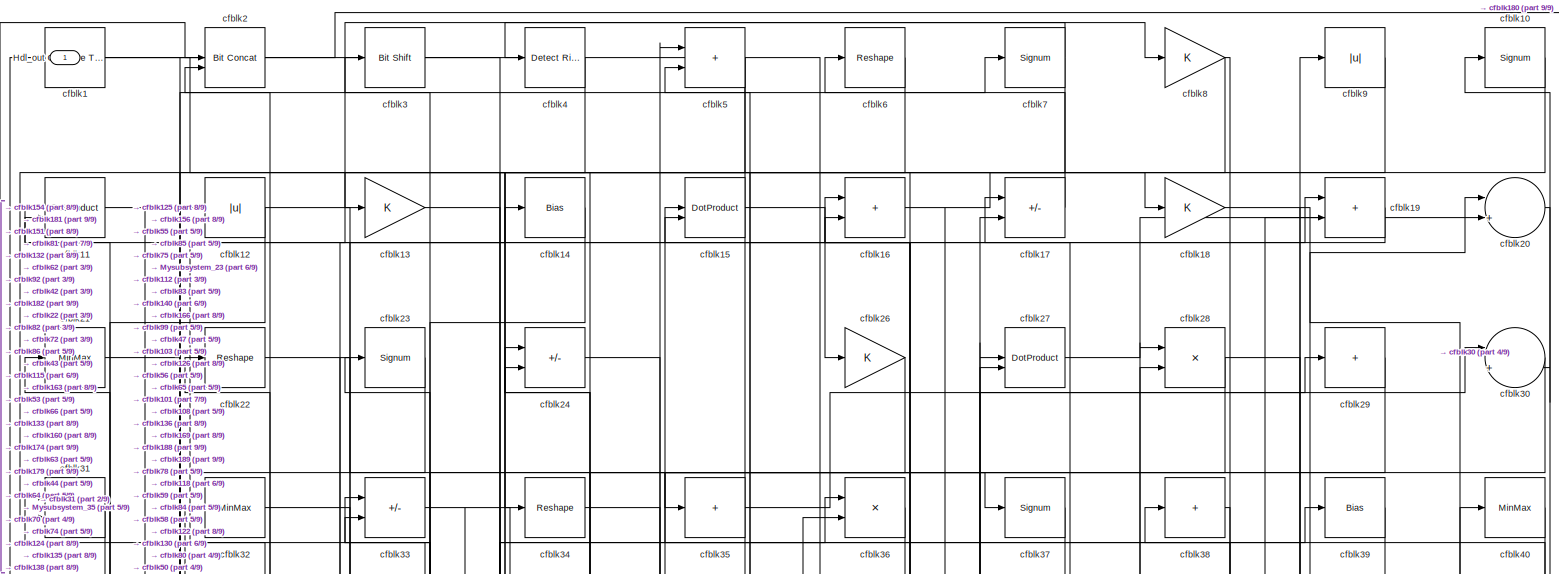
[diagram: root canvas - part 1/9, full width, top band]
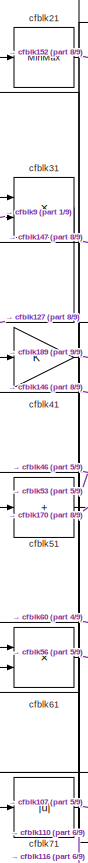
[diagram: root canvas - part 2/9, top left region]
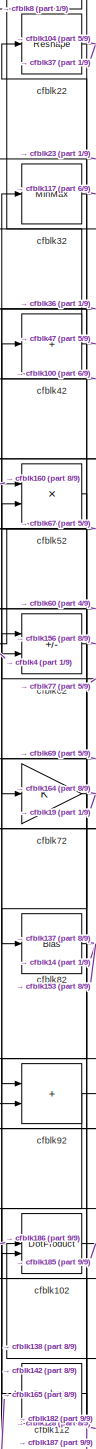
[diagram: root canvas - part 3/9, middle left region]
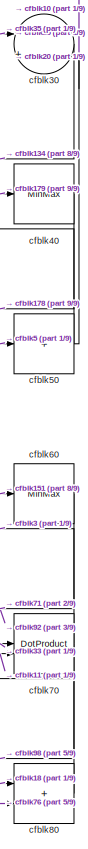
[diagram: root canvas - part 4/9, top right region]
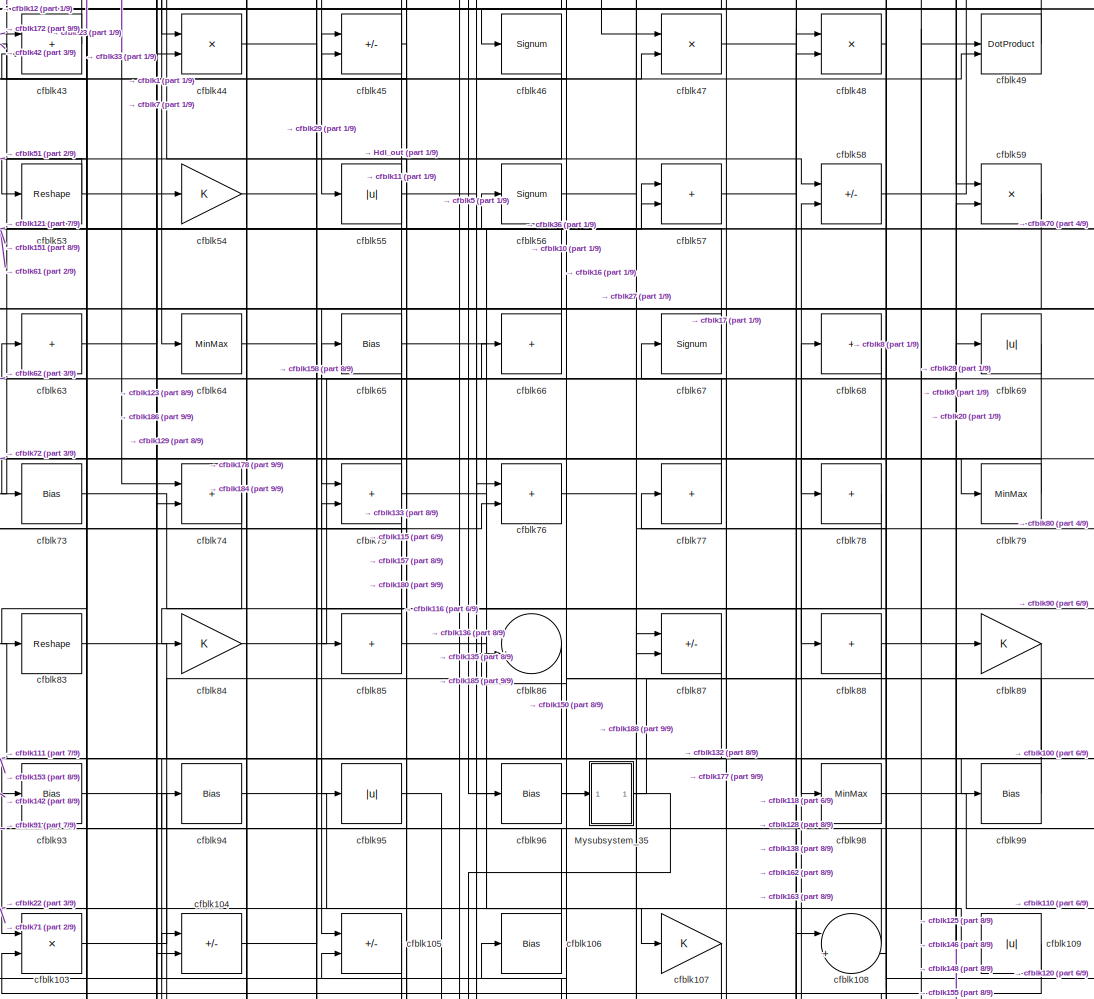
[diagram: root canvas - part 5/9, central region]
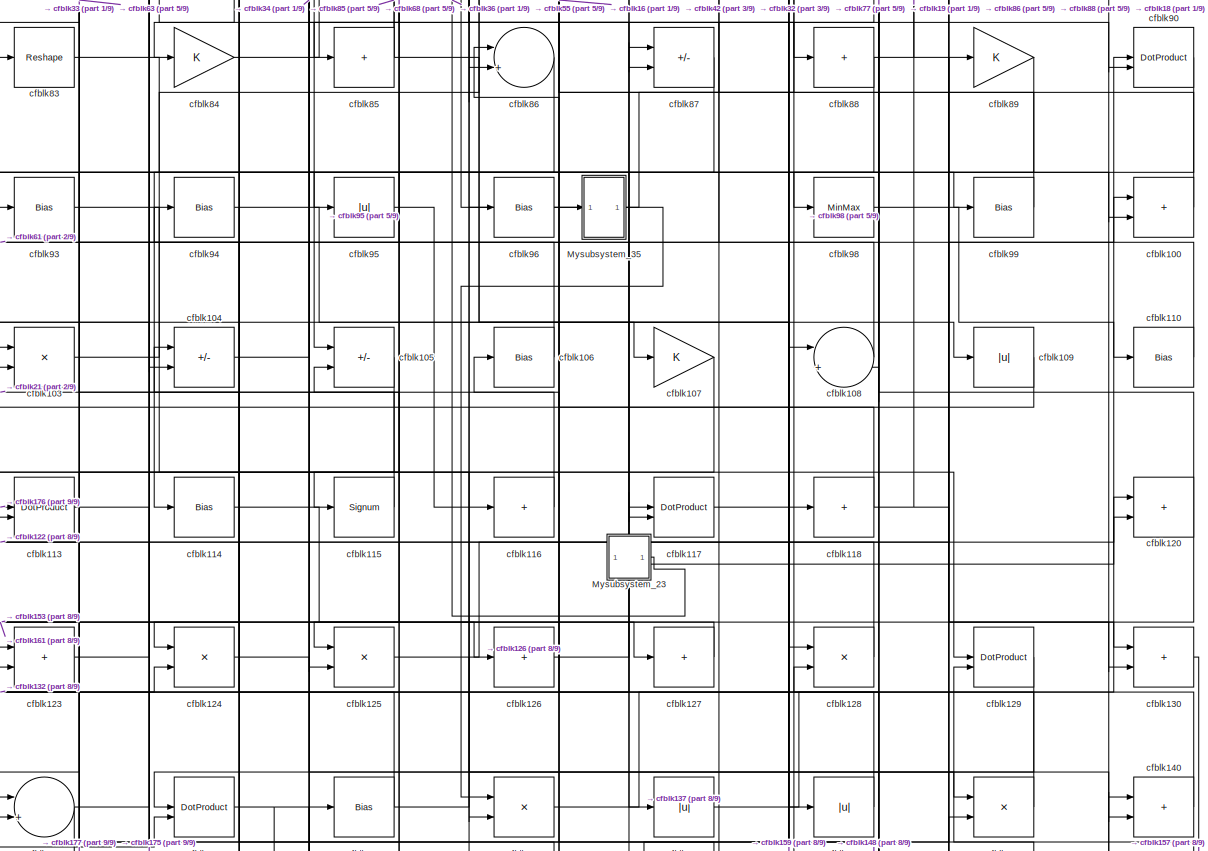
[diagram: root canvas - part 6/9, full width, middle band]
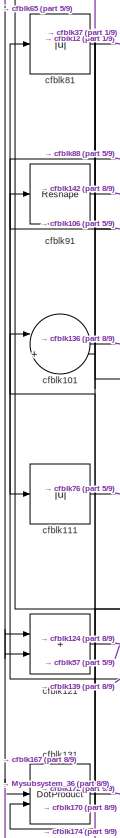
[diagram: root canvas - part 7/9, middle left region]
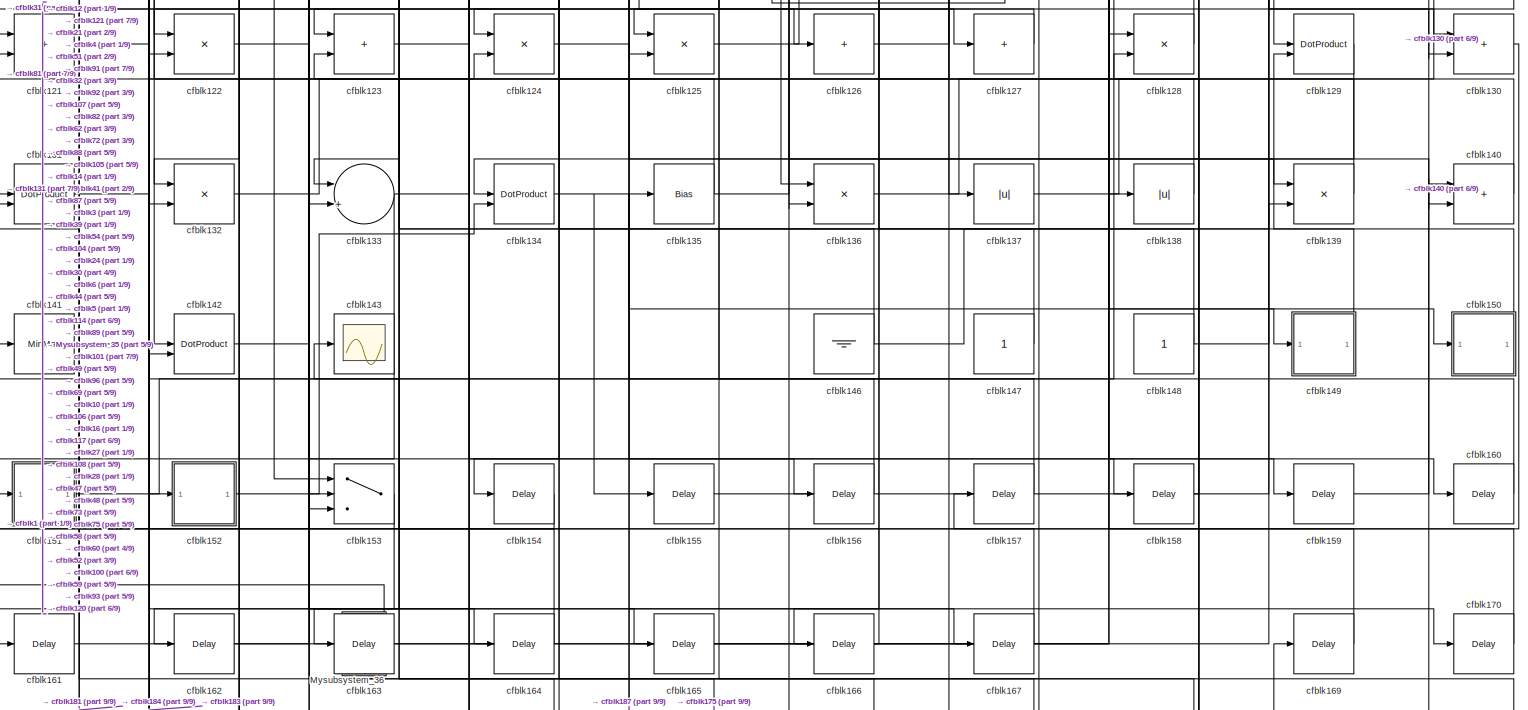
[diagram: root canvas - part 8/9, full width, bottom band]
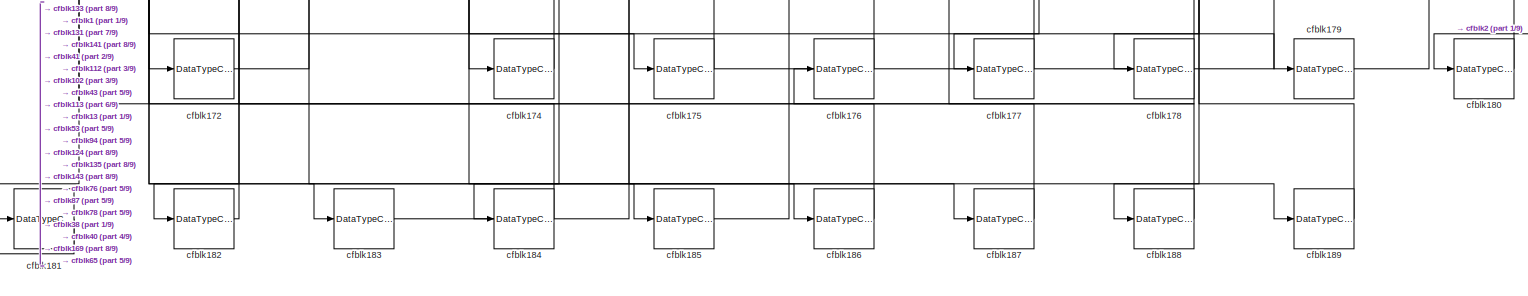
[diagram: root canvas - part 9/9, full width, bottom band]
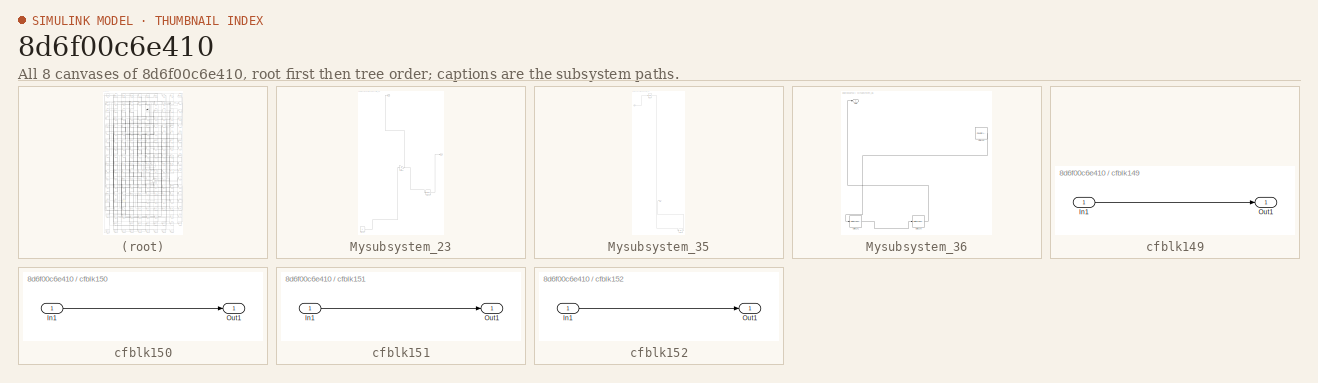
[diagram: thumbnail index - all 8 canvases of the model, root first then tree order]
MODEL slx_8d6f00c6e410
KIND model
CONFIG AbsTol = auto
CONFIG EnableMultiTasking = off
CONFIG FixedStep = auto
CONFIG MaxStep = auto
CONFIG MinStep = auto
CONFIG RelTol = 1e-3
CONFIG SampleTimeConstraint = Unconstrained
CONFIG SolverName = VariableStepAuto
CONFIG StartTime = 0.0
CONFIG StopTime = 10.0
BLOCK [Outport] Hdl_out
  OutDataTypeStr = uint8
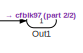
[diagram: Mysubsystem_23 - part 1/2, top center region]
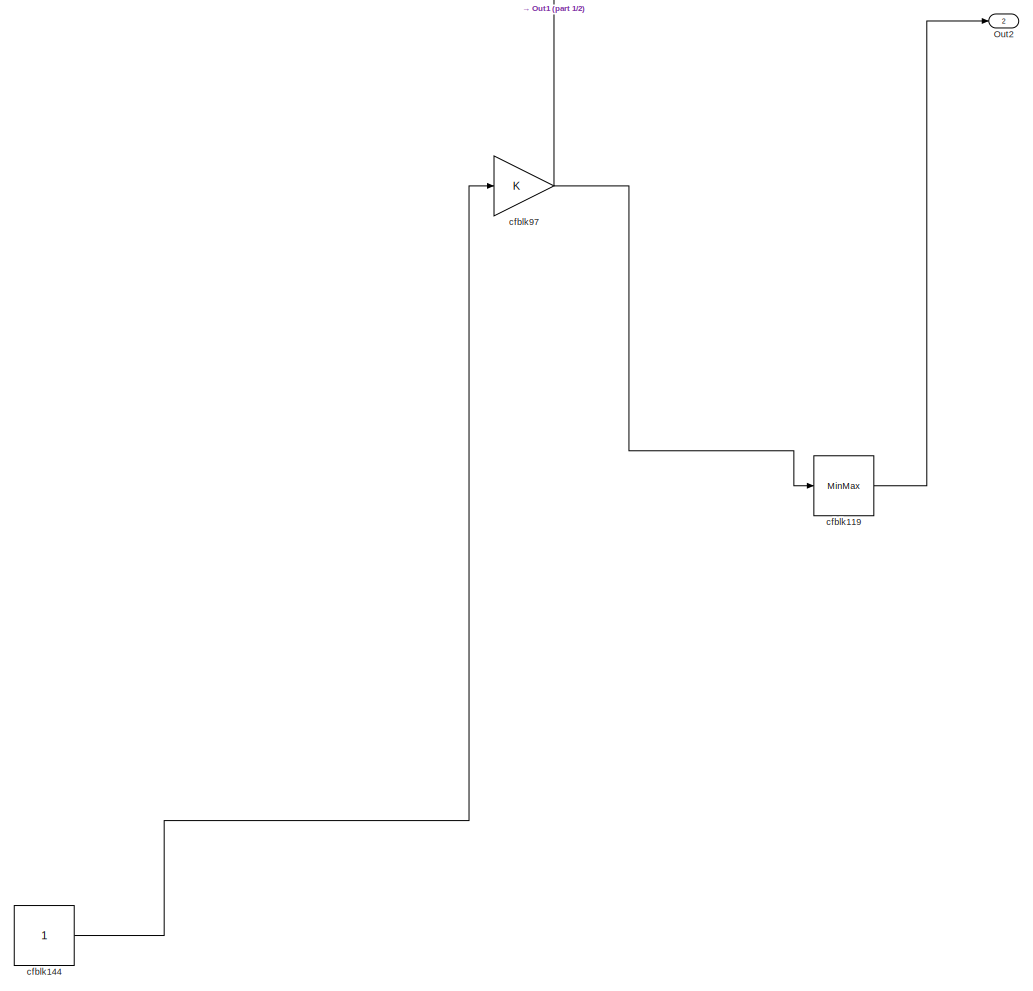
[diagram: Mysubsystem_23 - part 2/2, full width, bottom band]
BLOCK [SubSystem] Mysubsystem_23
  RTWFcnName = Mysubsystem_23
  RTWFcnNameOpts = User specified
  RTWFileNameOpts = Use function name
  RTWSystemCode = Reusable function
  TreatAsAtomicUnit = on
BLOCK [Outport] Mysubsystem_23/Out1
BLOCK [Outport] Mysubsystem_23/Out2
  Port = 2
BLOCK [MinMax] Mysubsystem_23/cfblk119
BLOCK [Constant] Mysubsystem_23/cfblk144
  SampleTime = -1
BLOCK [Gain] Mysubsystem_23/cfblk97
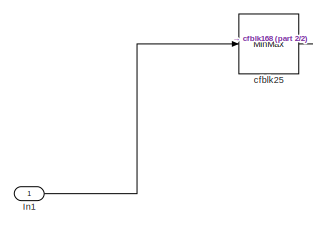
[diagram: Mysubsystem_35 - part 1/2, top left region]
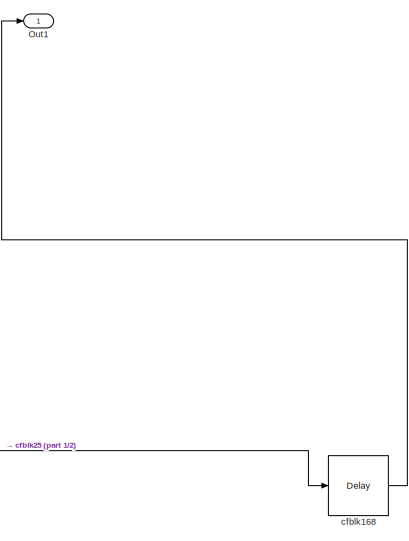
[diagram: Mysubsystem_35 - part 2/2, bottom right region]
BLOCK [SubSystem] Mysubsystem_35
  RTWFcnName = Mysubsystem_35
  RTWFcnNameOpts = User specified
  RTWFileNameOpts = Use function name
  RTWSystemCode = Reusable function
  TreatAsAtomicUnit = on
BLOCK [Inport] Mysubsystem_35/In1
BLOCK [Outport] Mysubsystem_35/Out1
BLOCK [Delay] Mysubsystem_35/cfblk168
  InputPortMap = u0
  SampleTime = 1
BLOCK [MinMax] Mysubsystem_35/cfblk25
BLOCK [SubSystem] Mysubsystem_36
  RTWFcnName = Mysubsystem_36
  RTWFcnNameOpts = User specified
  RTWFileNameOpts = Use function name
  RTWSystemCode = Reusable function
  TreatAsAtomicUnit = on
BLOCK [Outport] Mysubsystem_36/Out1
BLOCK [Reference] Mysubsystem_36/cfblk145  REF=hdlsllib/Sources/Counter
Limited
  SourceBlock = hdlsllib/Sources/Counter\nLimited
  SourceType = Counter Limited
BLOCK [DataTypeConversion] Mysubsystem_36/cfblk171
  OutDataTypeStr = uint8
  RndMeth = Floor
  SaturateOnIntegerOverflow = off
BLOCK [DataTypeConversion] Mysubsystem_36/cfblk173
  OutDataTypeStr = uint8
  RndMeth = Floor
  SaturateOnIntegerOverflow = off
BLOCK [Reference] cfblk1  REF=hdlsllib/Logic and Bit
Operations/Compare
To Zero
  SourceBlock = hdlsllib/Logic and Bit\nOperations/Compare\nTo Zero
  SourceType = Compare To Zero
BLOCK [Signum] cfblk10
BLOCK [Sum] cfblk100
  IconShape = rectangular
  OutDataTypeStr = uint8
BLOCK [Sum] cfblk101
  Inputs = |++
  OutDataTypeStr = uint8
BLOCK [DotProduct] cfblk102
  OutDataTypeStr = uint8
BLOCK [Product] cfblk103
  Inputs = */
  OutDataTypeStr = uint8
  RndMeth = Zero
  SaturateOnIntegerOverflow = on
BLOCK [Sum] cfblk104
  IconShape = rectangular
  Inputs = +-
  OutDataTypeStr = uint8
BLOCK [Sum] cfblk105
  IconShape = rectangular
  Inputs = +-
  OutDataTypeStr = uint8
BLOCK [Bias] cfblk106
  Bias = 0.0
  SaturateOnIntegerOverflow = off
BLOCK [Gain] cfblk107
  OutDataTypeStr = uint8
BLOCK [Sum] cfblk108
  Inputs = |++
  OutDataTypeStr = uint8
BLOCK [Abs] cfblk109
  OutDataTypeStr = uint8
  SaturateOnIntegerOverflow = off
BLOCK [DotProduct] cfblk11
  OutDataTypeStr = uint8
BLOCK [Bias] cfblk110
  Bias = 0.0
  SaturateOnIntegerOverflow = off
BLOCK [Abs] cfblk111
  OutDataTypeStr = uint8
  SaturateOnIntegerOverflow = off
BLOCK [Reshape] cfblk112
BLOCK [DotProduct] cfblk113
  OutDataTypeStr = uint8
BLOCK [Bias] cfblk114
  Bias = 0.0
  SaturateOnIntegerOverflow = off
BLOCK [Signum] cfblk115
BLOCK [Sum] cfblk116
  IconShape = rectangular
  Inputs = +
  OutDataTypeStr = uint8
BLOCK [DotProduct] cfblk117
  OutDataTypeStr = uint8
BLOCK [Sum] cfblk118
  IconShape = rectangular
  Inputs = +
  OutDataTypeStr = uint8
BLOCK [Abs] cfblk12
  OutDataTypeStr = uint8
  SaturateOnIntegerOverflow = off
BLOCK [Sum] cfblk120
  IconShape = rectangular
  OutDataTypeStr = uint8
BLOCK [Sum] cfblk121
  IconShape = rectangular
  OutDataTypeStr = uint8
BLOCK [Product] cfblk122
  Inputs = */
  OutDataTypeStr = uint8
  RndMeth = Zero
  SaturateOnIntegerOverflow = on
BLOCK [Sum] cfblk123
  IconShape = rectangular
  OutDataTypeStr = uint8
BLOCK [Product] cfblk124
  Inputs = */
  OutDataTypeStr = uint8
  RndMeth = Zero
  SaturateOnIntegerOverflow = on
BLOCK [Product] cfblk125
  Inputs = */
  OutDataTypeStr = uint8
  RndMeth = Zero
  SaturateOnIntegerOverflow = on
BLOCK [Sum] cfblk126
  IconShape = rectangular
  Inputs = +
  OutDataTypeStr = uint8
BLOCK [Sum] cfblk127
  IconShape = rectangular
  Inputs = +
  OutDataTypeStr = uint8
BLOCK [Product] cfblk128
  Inputs = */
  OutDataTypeStr = uint8
  RndMeth = Zero
  SaturateOnIntegerOverflow = on
BLOCK [DotProduct] cfblk129
  OutDataTypeStr = uint8
BLOCK [Gain] cfblk13
  OutDataTypeStr = uint8
BLOCK [Sum] cfblk130
  IconShape = rectangular
  OutDataTypeStr = uint8
BLOCK [DotProduct] cfblk131
  OutDataTypeStr = uint8
BLOCK [Product] cfblk132
  Inputs = */
  OutDataTypeStr = uint8
  RndMeth = Zero
  SaturateOnIntegerOverflow = on
BLOCK [Sum] cfblk133
  Inputs = |++
  OutDataTypeStr = uint8
BLOCK [DotProduct] cfblk134
  OutDataTypeStr = uint8
BLOCK [Bias] cfblk135
  Bias = 0.0
  SaturateOnIntegerOverflow = off
BLOCK [Product] cfblk136
  Inputs = */
  OutDataTypeStr = uint8
  RndMeth = Zero
  SaturateOnIntegerOverflow = on
BLOCK [Abs] cfblk137
  OutDataTypeStr = uint8
  SaturateOnIntegerOverflow = off
BLOCK [Abs] cfblk138
  OutDataTypeStr = uint8
  SaturateOnIntegerOverflow = off
BLOCK [Product] cfblk139
  Inputs = */
  OutDataTypeStr = uint8
  RndMeth = Zero
  SaturateOnIntegerOverflow = on
BLOCK [Bias] cfblk14
  Bias = 0.0
  SaturateOnIntegerOverflow = off
BLOCK [Sum] cfblk140
  IconShape = rectangular
  OutDataTypeStr = uint8
BLOCK [MinMax] cfblk141
  OutDataTypeStr = uint8
BLOCK [DotProduct] cfblk142
  OutDataTypeStr = uint8
BLOCK [Scope] cfblk143
  Floating = off
  NumInputPorts = 1
  ScopeSpecificationString = Simulink.scopes.TimeScopeBlockCfg('CurrentConfiguration', extmgr.ConfigurationSet(extmgr.Configuration('Core','General UI',true),extmgr.Configuration('Core','Source UI',true),extmgr.Configuration('Sources','WiredSimulink',true,'DataLoggingVariableName','ScopeData2','DataLoggingSaveFormat','Array','DataLoggingLimitDataPoints',true,'DataLoggingDecimation','1'),extmgr.Configuration('Visuals','Time Do...<+868ch>
BLOCK [Ground] cfblk146
BLOCK [Constant] cfblk147
  OutDataTypeStr = uint8
  SampleTime = -1
BLOCK [Constant] cfblk148
  OutDataTypeStr = uint8
  SampleTime = -1
BLOCK [SubSystem] cfblk149
  LibrarySourceBlock = hdlsllib/Ports &\nSubsystems/Subsystem
BLOCK [Inport] cfblk149/In1
BLOCK [Outport] cfblk149/Out1
BLOCK [DotProduct] cfblk15
  OutDataTypeStr = uint8
BLOCK [SubSystem] cfblk150
  LibrarySourceBlock = hdlsllib/Ports &\nSubsystems/Subsystem
BLOCK [Inport] cfblk150/In1
BLOCK [Outport] cfblk150/Out1
BLOCK [SubSystem] cfblk151
  LibrarySourceBlock = hdlsllib/Ports &\nSubsystems/Subsystem
BLOCK [Inport] cfblk151/In1
BLOCK [Outport] cfblk151/Out1
BLOCK [SubSystem] cfblk152
  LibrarySourceBlock = hdlsllib/Ports &\nSubsystems/Subsystem
BLOCK [Inport] cfblk152/In1
BLOCK [Outport] cfblk152/Out1
BLOCK [Switch] cfblk153
  InputSameDT = off
  OutDataTypeStr = uint8
  SaturateOnIntegerOverflow = off
BLOCK [Delay] cfblk154
  InputPortMap = u0
  SampleTime = 1
BLOCK [Delay] cfblk155
  InputPortMap = u0
  SampleTime = 1
BLOCK [Delay] cfblk156
  InputPortMap = u0
  SampleTime = 1
BLOCK [Delay] cfblk157
  InputPortMap = u0
  SampleTime = 1
BLOCK [Delay] cfblk158
  InputPortMap = u0
  SampleTime = 1
BLOCK [Delay] cfblk159
  InputPortMap = u0
  SampleTime = 1
BLOCK [Sum] cfblk16
  IconShape = rectangular
  OutDataTypeStr = uint8
BLOCK [Delay] cfblk160
  InputPortMap = u0
  SampleTime = 1
BLOCK [Delay] cfblk161
  InputPortMap = u0
  SampleTime = 1
BLOCK [Delay] cfblk162
  InputPortMap = u0
  SampleTime = 1
BLOCK [Delay] cfblk163
  InputPortMap = u0
  SampleTime = 1
BLOCK [Delay] cfblk164
  InputPortMap = u0
  SampleTime = 1
BLOCK [Delay] cfblk165
  InputPortMap = u0
  SampleTime = 1
BLOCK [Delay] cfblk166
  InputPortMap = u0
  SampleTime = 1
BLOCK [Delay] cfblk167
  InputPortMap = u0
  SampleTime = 1
BLOCK [Delay] cfblk169
  InputPortMap = u0
  SampleTime = 1
BLOCK [Sum] cfblk17
  IconShape = rectangular
  Inputs = +-
  OutDataTypeStr = uint8
BLOCK [Delay] cfblk170
  InputPortMap = u0
  SampleTime = 1
BLOCK [DataTypeConversion] cfblk172
  OutDataTypeStr = uint8
  RndMeth = Floor
  SaturateOnIntegerOverflow = off
BLOCK [DataTypeConversion] cfblk174
  OutDataTypeStr = uint8
  RndMeth = Floor
  SaturateOnIntegerOverflow = off
BLOCK [DataTypeConversion] cfblk175
  OutDataTypeStr = uint8
  RndMeth = Floor
  SaturateOnIntegerOverflow = off
BLOCK [DataTypeConversion] cfblk176
  OutDataTypeStr = uint8
  RndMeth = Floor
  SaturateOnIntegerOverflow = off
BLOCK [DataTypeConversion] cfblk177
  OutDataTypeStr = uint8
  RndMeth = Floor
  SaturateOnIntegerOverflow = off
BLOCK [DataTypeConversion] cfblk178
  OutDataTypeStr = uint8
  RndMeth = Floor
  SaturateOnIntegerOverflow = off
BLOCK [DataTypeConversion] cfblk179
  OutDataTypeStr = uint8
  RndMeth = Floor
  SaturateOnIntegerOverflow = off
BLOCK [Gain] cfblk18
  OutDataTypeStr = uint8
BLOCK [DataTypeConversion] cfblk180
  OutDataTypeStr = uint8
  RndMeth = Floor
  SaturateOnIntegerOverflow = off
BLOCK [DataTypeConversion] cfblk181
  OutDataTypeStr = uint8
  RndMeth = Floor
  SaturateOnIntegerOverflow = off
BLOCK [DataTypeConversion] cfblk182
  OutDataTypeStr = uint8
  RndMeth = Floor
  SaturateOnIntegerOverflow = off
BLOCK [DataTypeConversion] cfblk183
  OutDataTypeStr = uint8
  RndMeth = Floor
  SaturateOnIntegerOverflow = off
BLOCK [DataTypeConversion] cfblk184
  OutDataTypeStr = uint8
  RndMeth = Floor
  SaturateOnIntegerOverflow = off
BLOCK [DataTypeConversion] cfblk185
  OutDataTypeStr = uint8
  RndMeth = Floor
  SaturateOnIntegerOverflow = off
BLOCK [DataTypeConversion] cfblk186
  OutDataTypeStr = uint8
  RndMeth = Floor
  SaturateOnIntegerOverflow = off
BLOCK [DataTypeConversion] cfblk187
  OutDataTypeStr = uint8
  RndMeth = Floor
  SaturateOnIntegerOverflow = off
BLOCK [DataTypeConversion] cfblk188
  OutDataTypeStr = uint8
  RndMeth = Floor
  SaturateOnIntegerOverflow = off
BLOCK [DataTypeConversion] cfblk189
  OutDataTypeStr = uint8
  RndMeth = Floor
  SaturateOnIntegerOverflow = off
BLOCK [Sum] cfblk19
  IconShape = rectangular
  OutDataTypeStr = uint8
BLOCK [Reference] cfblk2  REF=hdlsllib/Logic and Bit
Operations/Bit Concat
  SourceBlock = hdlsllib/Logic and Bit\nOperations/Bit Concat
  SourceType = Bit Concat
BLOCK [Sum] cfblk20
  Inputs = |++
  OutDataTypeStr = uint8
BLOCK [MinMax] cfblk21
  OutDataTypeStr = uint8
BLOCK [Reshape] cfblk22
BLOCK [Signum] cfblk23
BLOCK [Sum] cfblk24
  IconShape = rectangular
  Inputs = +-
  OutDataTypeStr = uint8
BLOCK [Gain] cfblk26
  OutDataTypeStr = uint8
BLOCK [DotProduct] cfblk27
  OutDataTypeStr = uint8
BLOCK [Product] cfblk28
  Inputs = */
  OutDataTypeStr = uint8
  RndMeth = Zero
  SaturateOnIntegerOverflow = on
BLOCK [Sum] cfblk29
  IconShape = rectangular
  Inputs = +
  OutDataTypeStr = uint8
BLOCK [Reference] cfblk3  REF=hdlsllib/Logic and Bit
Operations/Bit Shift
  SourceBlock = hdlsllib/Logic and Bit\nOperations/Bit Shift
  SourceType = Bit Shift
BLOCK [Sum] cfblk30
  Inputs = |++
  OutDataTypeStr = uint8
BLOCK [Product] cfblk31
  Inputs = */
  OutDataTypeStr = uint8
  RndMeth = Zero
  SaturateOnIntegerOverflow = on
BLOCK [MinMax] cfblk32
  OutDataTypeStr = uint8
BLOCK [Sum] cfblk33
  IconShape = rectangular
  Inputs = +-
  OutDataTypeStr = uint8
BLOCK [Reshape] cfblk34
BLOCK [Sum] cfblk35
  IconShape = rectangular
  Inputs = +
  OutDataTypeStr = uint8
BLOCK [Product] cfblk36
  Inputs = */
  OutDataTypeStr = uint8
  RndMeth = Zero
  SaturateOnIntegerOverflow = on
BLOCK [Signum] cfblk37
BLOCK [Sum] cfblk38
  IconShape = rectangular
  Inputs = +
  OutDataTypeStr = uint8
BLOCK [Bias] cfblk39
  Bias = 0.0
  SaturateOnIntegerOverflow = off
BLOCK [Reference] cfblk4  REF=hdlsllib/Logic and Bit
Operations/Detect Rise
Nonnegative
  SourceBlock = hdlsllib/Logic and Bit\nOperations/Detect Rise\nNonnegative
  SourceType = Detect Rise Nonnegative
BLOCK [MinMax] cfblk40
  OutDataTypeStr = uint8
BLOCK [Gain] cfblk41
  OutDataTypeStr = uint8
BLOCK [Sum] cfblk42
  IconShape = rectangular
  Inputs = +
  OutDataTypeStr = uint8
BLOCK [Sum] cfblk43
  IconShape = rectangular
  OutDataTypeStr = uint8
BLOCK [Product] cfblk44
  Inputs = */
  OutDataTypeStr = uint8
  RndMeth = Zero
  SaturateOnIntegerOverflow = on
BLOCK [Sum] cfblk45
  IconShape = rectangular
  Inputs = +-
  OutDataTypeStr = uint8
BLOCK [Signum] cfblk46
BLOCK [Product] cfblk47
  Inputs = */
  OutDataTypeStr = uint8
  RndMeth = Zero
  SaturateOnIntegerOverflow = on
BLOCK [Product] cfblk48
  Inputs = */
  OutDataTypeStr = uint8
  RndMeth = Zero
  SaturateOnIntegerOverflow = on
BLOCK [DotProduct] cfblk49
  OutDataTypeStr = uint8
BLOCK [Sum] cfblk5
  IconShape = rectangular
  OutDataTypeStr = uint8
BLOCK [Sum] cfblk50
  IconShape = rectangular
  Inputs = +
  OutDataTypeStr = uint8
BLOCK [Sum] cfblk51
  IconShape = rectangular
  Inputs = +
  OutDataTypeStr = uint8
BLOCK [Product] cfblk52
  Inputs = */
  OutDataTypeStr = uint8
  RndMeth = Zero
  SaturateOnIntegerOverflow = on
BLOCK [Reshape] cfblk53
BLOCK [Gain] cfblk54
  OutDataTypeStr = uint8
BLOCK [Abs] cfblk55
  OutDataTypeStr = uint8
  SaturateOnIntegerOverflow = off
BLOCK [Signum] cfblk56
BLOCK [Sum] cfblk57
  IconShape = rectangular
  OutDataTypeStr = uint8
BLOCK [Sum] cfblk58
  IconShape = rectangular
  Inputs = +-
  OutDataTypeStr = uint8
BLOCK [Product] cfblk59
  Inputs = */
  OutDataTypeStr = uint8
  RndMeth = Zero
  SaturateOnIntegerOverflow = on
BLOCK [Reshape] cfblk6
BLOCK [MinMax] cfblk60
  OutDataTypeStr = uint8
BLOCK [Product] cfblk61
  Inputs = */
  OutDataTypeStr = uint8
  RndMeth = Zero
  SaturateOnIntegerOverflow = on
BLOCK [Sum] cfblk62
  IconShape = rectangular
  Inputs = +-
  OutDataTypeStr = uint8
BLOCK [Sum] cfblk63
  IconShape = rectangular
  Inputs = +
  OutDataTypeStr = uint8
BLOCK [MinMax] cfblk64
  OutDataTypeStr = uint8
BLOCK [Bias] cfblk65
  Bias = 0.0
  SaturateOnIntegerOverflow = off
BLOCK [Sum] cfblk66
  IconShape = rectangular
  Inputs = +
  OutDataTypeStr = uint8
BLOCK [Signum] cfblk67
BLOCK [Sum] cfblk68
  IconShape = rectangular
  Inputs = +
  OutDataTypeStr = uint8
BLOCK [Abs] cfblk69
  OutDataTypeStr = uint8
  SaturateOnIntegerOverflow = off
BLOCK [Signum] cfblk7
BLOCK [DotProduct] cfblk70
  OutDataTypeStr = uint8
BLOCK [Abs] cfblk71
  OutDataTypeStr = uint8
  SaturateOnIntegerOverflow = off
BLOCK [Gain] cfblk72
  OutDataTypeStr = uint8
BLOCK [Bias] cfblk73
  Bias = 0.0
  SaturateOnIntegerOverflow = off
BLOCK [Sum] cfblk74
  IconShape = rectangular
  OutDataTypeStr = uint8
BLOCK [Sum] cfblk75
  IconShape = rectangular
  OutDataTypeStr = uint8
BLOCK [Sum] cfblk76
  IconShape = rectangular
  OutDataTypeStr = uint8
BLOCK [Sum] cfblk77
  IconShape = rectangular
  Inputs = +
  OutDataTypeStr = uint8
BLOCK [Sum] cfblk78
  IconShape = rectangular
  Inputs = +
  OutDataTypeStr = uint8
BLOCK [MinMax] cfblk79
  OutDataTypeStr = uint8
BLOCK [Gain] cfblk8
  OutDataTypeStr = uint8
BLOCK [Sum] cfblk80
  IconShape = rectangular
  OutDataTypeStr = uint8
BLOCK [Abs] cfblk81
  OutDataTypeStr = uint8
  SaturateOnIntegerOverflow = off
BLOCK [Bias] cfblk82
  Bias = 0.0
  SaturateOnIntegerOverflow = off
BLOCK [Reshape] cfblk83
BLOCK [Gain] cfblk84
  OutDataTypeStr = uint8
BLOCK [Sum] cfblk85
  IconShape = rectangular
  Inputs = +
  OutDataTypeStr = uint8
BLOCK [Sum] cfblk86
  Inputs = |++
  OutDataTypeStr = uint8
BLOCK [Sum] cfblk87
  IconShape = rectangular
  Inputs = +-
  OutDataTypeStr = uint8
BLOCK [Sum] cfblk88
  IconShape = rectangular
  Inputs = +
  OutDataTypeStr = uint8
BLOCK [Gain] cfblk89
  OutDataTypeStr = uint8
BLOCK [Abs] cfblk9
  OutDataTypeStr = uint8
  SaturateOnIntegerOverflow = off
BLOCK [DotProduct] cfblk90
  OutDataTypeStr = uint8
BLOCK [Reshape] cfblk91
BLOCK [Sum] cfblk92
  IconShape = rectangular
  OutDataTypeStr = uint8
BLOCK [Bias] cfblk93
  Bias = 0.0
  SaturateOnIntegerOverflow = off
BLOCK [Bias] cfblk94
  Bias = 0.0
  SaturateOnIntegerOverflow = off
BLOCK [Abs] cfblk95
  OutDataTypeStr = uint8
  SaturateOnIntegerOverflow = off
BLOCK [Bias] cfblk96
  Bias = 0.0
  SaturateOnIntegerOverflow = off
BLOCK [MinMax] cfblk98
  OutDataTypeStr = uint8
BLOCK [Bias] cfblk99
  Bias = 0.0
  SaturateOnIntegerOverflow = off
LINE Mysubsystem_23/cfblk119:1 -> Mysubsystem_23/Out2:1
LINE Mysubsystem_23/cfblk144:1 -> Mysubsystem_23/cfblk97:1
NET Mysubsystem_23/cfblk97:1 -> Mysubsystem_23/Out1:1, Mysubsystem_23/cfblk119:1
LINE Mysubsystem_23:1 -> cfblk36:2
LINE Mysubsystem_23:2 -> cfblk90:1
LINE Mysubsystem_35/In1:1 -> Mysubsystem_35/cfblk25:1
LINE Mysubsystem_35/cfblk168:1 -> Mysubsystem_35/Out1:1
LINE Mysubsystem_35/cfblk25:1 -> Mysubsystem_35/cfblk168:1
LINE Mysubsystem_35:1 -> cfblk136:1
LINE Mysubsystem_36/cfblk145:1 -> Mysubsystem_36/cfblk171:1
LINE Mysubsystem_36/cfblk171:1 -> Mysubsystem_36/cfblk173:1
LINE Mysubsystem_36/cfblk173:1 -> Mysubsystem_36/Out1:1
LINE Mysubsystem_36:1 -> cfblk131:1
LINE cfblk100:1 -> cfblk42:1
LINE cfblk101:1 -> cfblk136:2
LINE cfblk102:1 -> cfblk185:1
LINE cfblk103:1 -> cfblk27:1
LINE cfblk104:1 -> cfblk57:1
LINE cfblk105:1 -> cfblk133:1
LINE cfblk106:1 -> cfblk91:1
LINE cfblk107:1 -> cfblk132:1
NET cfblk108:1 -> cfblk17:1, cfblk43:2, cfblk45:2, cfblk75:2
LINE cfblk109:1 -> cfblk103:2
NET cfblk10:1 -> cfblk166:1, cfblk75:1
LINE cfblk110:1 -> cfblk61:2
LINE cfblk111:1 -> cfblk76:2
LINE cfblk112:1 -> cfblk182:1
LINE cfblk113:1 -> cfblk175:1
LINE cfblk114:1 -> cfblk126:1
NET cfblk115:1 -> cfblk33:2, cfblk63:1
LINE cfblk116:1 -> cfblk21:1
LINE cfblk117:1 -> cfblk159:1
NET cfblk118:1 -> cfblk130:1, cfblk19:2, cfblk86:1
NET cfblk11:1 -> cfblk70:2, cfblk7:1
NET cfblk120:1 -> cfblk153:2, cfblk161:1, cfblk77:1
NET cfblk121:1 -> cfblk124:2, cfblk57:2
LINE cfblk122:1 -> cfblk120:2
LINE cfblk123:1 -> cfblk54:1
NET cfblk124:1 -> cfblk167:1, cfblk187:1
NET cfblk125:1 -> cfblk139:1, cfblk69:1
LINE cfblk126:1 -> cfblk27:2
LINE cfblk127:1 -> cfblk122:1
LINE cfblk128:1 -> cfblk52:2
LINE cfblk129:1 -> cfblk154:1
NET cfblk12:1 -> cfblk151:1, cfblk86:2
LINE cfblk130:1 -> cfblk157:1
LINE cfblk131:1 -> cfblk172:1
LINE cfblk132:1 -> cfblk117:1
NET cfblk133:1 -> cfblk181:1, cfblk39:1
NET cfblk134:1 -> cfblk149:1, cfblk155:1
NET cfblk135:1 -> cfblk24:2, cfblk49:2, cfblk96:1
LINE cfblk136:1 -> cfblk28:2
LINE cfblk137:1 -> cfblk120:1
NET cfblk138:1 -> cfblk24:1, cfblk32:1
LINE cfblk139:1 -> cfblk81:1
LINE cfblk13:1 -> cfblk174:1
LINE cfblk140:1 -> cfblk16:1
LINE cfblk141:1 -> cfblk183:1
LINE cfblk142:1 -> cfblk93:1
NET cfblk146:1 -> cfblk41:1, cfblk89:1
LINE cfblk147:1 -> cfblk31:1
NET cfblk148:1 -> cfblk100:1, cfblk104:1
LINE cfblk149/In1:1 -> cfblk149/Out1:1
LINE cfblk149:1 -> cfblk129:2
LINE cfblk14:1 -> cfblk163:1
LINE cfblk150/In1:1 -> cfblk150/Out1:1
LINE cfblk150:1 -> cfblk106:1
LINE cfblk151/In1:1 -> cfblk151/Out1:1
NET cfblk151:1 -> cfblk58:2, cfblk60:1
LINE cfblk152/In1:1 -> cfblk152/Out1:1
LINE cfblk152:1 -> cfblk134:2
LINE cfblk153:1 -> cfblk162:1
LINE cfblk154:1 -> cfblk1:1
LINE cfblk155:1 -> cfblk59:2
LINE cfblk156:1 -> cfblk5:1
LINE cfblk157:1 -> cfblk105:2
LINE cfblk158:1 -> cfblk128:2
LINE cfblk159:1 -> cfblk140:1
LINE cfblk15:1 -> cfblk26:1
LINE cfblk160:1 -> cfblk52:1
LINE cfblk161:1 -> cfblk133:2
LINE cfblk162:1 -> cfblk108:1
LINE cfblk163:1 -> cfblk48:2
LINE cfblk164:1 -> cfblk123:2
LINE cfblk165:1 -> cfblk139:2
LINE cfblk166:1 -> cfblk16:2
LINE cfblk167:1 -> cfblk121:1
LINE cfblk169:1 -> cfblk28:1
NET cfblk16:1 -> cfblk18:1, cfblk47:1
LINE cfblk170:1 -> cfblk101:1
LINE cfblk172:1 -> cfblk43:1
LINE cfblk174:1 -> cfblk131:2
NET cfblk175:1 -> cfblk143:1, cfblk169:1
LINE cfblk176:1 -> cfblk113:1
LINE cfblk177:1 -> cfblk113:2
NET cfblk178:1 -> cfblk176:1, cfblk94:1
LINE cfblk179:1 -> cfblk40:1
LINE cfblk17:1 -> cfblk6:1
LINE cfblk180:1 -> cfblk65:1
LINE cfblk181:1 -> cfblk2:1
LINE cfblk182:1 -> cfblk2:2
LINE cfblk183:1 -> cfblk135:1
LINE cfblk184:1 -> cfblk141:1
LINE cfblk185:1 -> cfblk76:1
LINE cfblk186:1 -> cfblk102:1
LINE cfblk187:1 -> cfblk102:2
LINE cfblk188:1 -> cfblk87:1
LINE cfblk189:1 -> cfblk38:1
NET cfblk18:1 -> cfblk130:2, cfblk80:1
LINE cfblk19:1 -> cfblk15:2
NET cfblk1:1 -> cfblk179:1, cfblk64:1
LINE cfblk20:1 -> cfblk30:2
LINE cfblk21:1 -> cfblk152:1
NET cfblk22:1 -> cfblk104:2, cfblk37:1
LINE cfblk23:1 -> cfblk92:2
LINE cfblk24:1 -> cfblk125:2
LINE cfblk26:1 -> cfblk35:1
LINE cfblk27:1 -> cfblk20:2
NET cfblk28:1 -> cfblk53:1, cfblk59:1
LINE cfblk29:1 -> cfblk55:1
LINE cfblk2:1 -> cfblk180:1
LINE cfblk30:1 -> cfblk134:1
LINE cfblk31:1 -> cfblk127:1
LINE cfblk32:1 -> cfblk117:2
NET cfblk33:1 -> Mysubsystem_35:1, cfblk58:1, cfblk70:1, cfblk74:1
LINE cfblk34:1 -> cfblk140:2
LINE cfblk35:1 -> cfblk30:1
NET cfblk36:1 -> cfblk112:1, cfblk83:1
LINE cfblk37:1 -> cfblk101:2
LINE cfblk38:1 -> cfblk188:1
LINE cfblk39:1 -> cfblk122:2
LINE cfblk3:1 -> cfblk160:1
LINE cfblk40:1 -> cfblk178:1
LINE cfblk41:1 -> cfblk189:1
NET cfblk42:1 -> cfblk47:2, cfblk8:1
LINE cfblk43:1 -> cfblk33:1
LINE cfblk44:1 -> cfblk158:1
LINE cfblk45:1 -> cfblk85:1
LINE cfblk46:1 -> cfblk61:1
LINE cfblk47:1 -> cfblk150:1
LINE cfblk48:1 -> cfblk108:2
LINE cfblk49:1 -> cfblk46:1
NET cfblk4:1 -> cfblk132:2, cfblk62:2
NET cfblk50:1 -> cfblk10:1, cfblk15:1
LINE cfblk51:1 -> cfblk170:1
LINE cfblk52:1 -> cfblk82:1
NET cfblk53:1 -> cfblk186:1, cfblk51:1
LINE cfblk54:1 -> cfblk99:1
LINE cfblk55:1 -> cfblk90:2
LINE cfblk56:1 -> cfblk29:1
LINE cfblk57:1 -> cfblk48:1
LINE cfblk58:1 -> cfblk20:1
LINE cfblk59:1 -> cfblk105:1
NET cfblk5:1 -> cfblk50:1, cfblk74:2
NET cfblk60:1 -> cfblk71:1, cfblk92:1
LINE cfblk61:1 -> cfblk56:1
LINE cfblk62:1 -> cfblk156:1
NET cfblk63:1 -> cfblk36:1, cfblk44:2
LINE cfblk64:1 -> cfblk87:2
NET cfblk65:1 -> cfblk121:2, cfblk17:2, cfblk88:1
LINE cfblk66:1 -> cfblk23:1
LINE cfblk67:1 -> cfblk22:1
LINE cfblk68:1 -> cfblk115:1
LINE cfblk69:1 -> cfblk72:1
NET cfblk6:1 -> cfblk124:1, cfblk34:1
NET cfblk70:1 -> cfblk3:1, cfblk98:1
LINE cfblk71:1 -> cfblk107:1
NET cfblk72:1 -> cfblk164:1, cfblk19:1
LINE cfblk73:1 -> cfblk138:1
LINE cfblk74:1 -> cfblk84:1
NET cfblk75:1 -> cfblk128:1, cfblk79:1
LINE cfblk76:1 -> cfblk80:2
NET cfblk77:1 -> cfblk45:1, cfblk62:1
LINE cfblk78:1 -> cfblk177:1
LINE cfblk79:1 -> cfblk73:1
NET cfblk7:1 -> cfblk44:1, cfblk4:1
LINE cfblk80:1 -> cfblk5:2
LINE cfblk81:1 -> cfblk12:1
NET cfblk82:1 -> cfblk137:1, cfblk14:1, cfblk153:1
NET cfblk83:1 -> cfblk66:1, cfblk95:1
LINE cfblk84:1 -> cfblk9:1
NET cfblk85:1 -> Hdl_out:1, cfblk118:1, cfblk11:1
LINE cfblk86:1 -> cfblk103:1
LINE cfblk87:1 -> cfblk123:1
NET cfblk88:1 -> cfblk100:2, cfblk111:1, cfblk153:3, cfblk49:1
LINE cfblk89:1 -> cfblk125:1
NET cfblk8:1 -> cfblk13:1, cfblk78:1
LINE cfblk90:1 -> cfblk114:1
LINE cfblk91:1 -> cfblk142:2
NET cfblk92:1 -> cfblk142:1, cfblk165:1
LINE cfblk93:1 -> cfblk129:1
NET cfblk94:1 -> cfblk109:1, cfblk184:1
LINE cfblk95:1 -> cfblk116:1
LINE cfblk96:1 -> cfblk68:1
LINE cfblk98:1 -> cfblk110:1
NET cfblk99:1 -> cfblk11:2, cfblk67:1
LINE cfblk9:1 -> cfblk31:2
note: NET lines group one-source signal fan-out (src -> all destinations, sorted); 1:1 wires keep LINE
